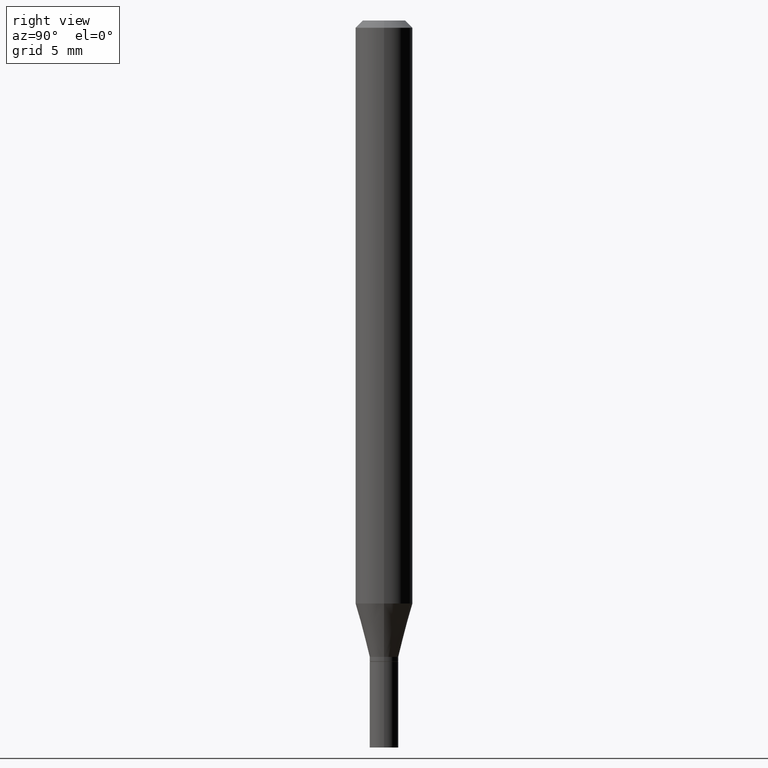
[diagram: clean part render]
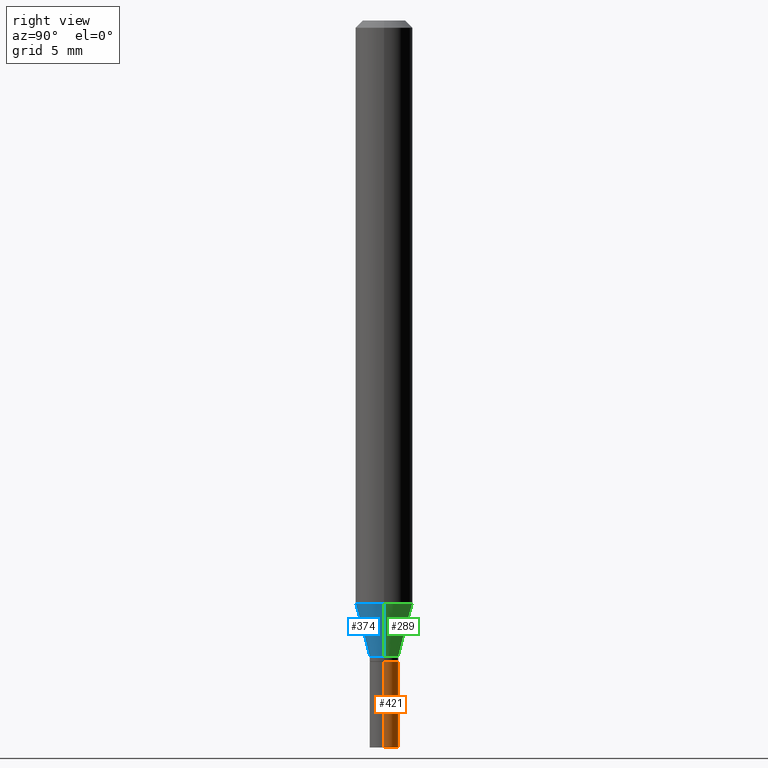
[diagram: same view with three faces highlighted in distinct colors, each labeled with its STEP entity id]
A machine part, right view with three faces highlighted in distinct colors.
Their STEP definitions:

[orange] entity #421 — the highlighted cylindrical surface (edge-blend (fillet) strip) has radius 0.7506 mm, axis along (-0, 0, 1).
#1 = CARTESIAN_POINT ( 'NONE',  ( 0.02954999999999999988, -2.063465471256291914E-16, 1.440910237247699070E-30 ) ) ;
#40 = AXIS2_PLACEMENT_3D ( 'NONE', #461, #210, #424 ) ;
#52 = VERTEX_POINT ( 'NONE', #278 ) ;
#55 = VECTOR ( 'NONE', #140, 39.37007874015748143 ) ;
#63 = DIRECTION ( 'NONE',  ( 1.000000000000000000, -6.982962677686261977E-15, 0.000000000000000000 ) ) ;
#79 = VERTEX_POINT ( 'NONE', #92 ) ;
#88 = DIRECTION ( 'NONE',  ( -2.445468806185136597E-29, 3.491481338843145583E-15, 1.000000000000000000 ) ) ;
#92 = CARTESIAN_POINT ( 'NONE',  ( 0.02954999999999999988, -5.443568555390347787E-15, -1.500000000000000222 ) ) ;
#100 = CYLINDRICAL_SURFACE ( 'NONE', #40, 0.02954999999999999988 ) ;
#115 = LINE ( 'NONE', #1, #316 ) ;
#132 = ORIENTED_EDGE ( 'NONE', *, *, #370, .F. ) ;
#138 = DIRECTION ( 'NONE',  ( -2.445468806185136877E-29, 3.491481338843145188E-15, 1.000000000000000000 ) ) ;
#140 = DIRECTION ( 'NONE',  ( -2.445468806185136877E-29, 3.491481338843145188E-15, 1.000000000000000000 ) ) ;
#152 = EDGE_CURVE ( 'NONE', #79, #275, #432, .T. ) ;
#164 = ORIENTED_EDGE ( 'NONE', *, *, #152, .T. ) ;
#166 = CARTESIAN_POINT ( 'NONE',  ( 3.234866136821698561E-29, -4.618531515021712857E-15, -1.322800000000000198 ) ) ;
#172 = EDGE_CURVE ( 'NONE', #275, #52, #325, .T. ) ;
#210 = DIRECTION ( 'NONE',  ( -2.445468806185136597E-29, 3.491481338843145583E-15, 1.000000000000000000 ) ) ;
#217 = EDGE_LOOP ( 'NONE', ( #164, #428, #235, #132 ) ) ;
#230 = CARTESIAN_POINT ( 'NONE',  ( -0.02954999999999999988, -4.717911383226106554E-15, -1.500000000000000222 ) ) ;
#235 = ORIENTED_EDGE ( 'NONE', *, *, #281, .F. ) ;
#275 = VERTEX_POINT ( 'NONE', #230 ) ;
#278 = CARTESIAN_POINT ( 'NONE',  ( -0.02954999999999999988, -4.717911383226106554E-15, -1.322800000000000198 ) ) ;
#281 = EDGE_CURVE ( 'NONE', #437, #52, #451, .T. ) ;
#282 = FACE_OUTER_BOUND ( 'NONE', #217, .T. ) ;
#290 = CARTESIAN_POINT ( 'NONE',  ( 3.668203209277704895E-29, -5.237222008264718177E-15, -1.500000000000000222 ) ) ;
#316 = VECTOR ( 'NONE', #138, 39.37007874015748143 ) ;
#322 = CARTESIAN_POINT ( 'NONE',  ( 0.02954999999999999988, -4.824878062147342468E-15, -1.322800000000000198 ) ) ;
#325 = LINE ( 'NONE', #463, #55 ) ;
#362 = DIRECTION ( 'NONE',  ( -2.445468806185136597E-29, 3.491481338843145583E-15, 1.000000000000000000 ) ) ;
#370 = EDGE_CURVE ( 'NONE', #79, #437, #115, .T. ) ;
#395 = DIRECTION ( 'NONE',  ( 1.000000000000000000, -6.982962677686261977E-15, 0.000000000000000000 ) ) ;
#413 = AXIS2_PLACEMENT_3D ( 'NONE', #166, #88, #63 ) ;
#421 = ADVANCED_FACE ( 'NONE', ( #282 ), #100, .T. ) ;
#424 = DIRECTION ( 'NONE',  ( 1.000000000000000000, -6.982962677686266711E-15, 4.876176775795935793E-29 ) ) ;
#428 = ORIENTED_EDGE ( 'NONE', *, *, #172, .T. ) ;
#432 = CIRCLE ( 'NONE', #460, 0.02954999999999999988 ) ;
#437 = VERTEX_POINT ( 'NONE', #322 ) ;
#451 = CIRCLE ( 'NONE', #413, 0.02954999999999999988 ) ;
#460 = AXIS2_PLACEMENT_3D ( 'NONE', #290, #362, #395 ) ;
#461 = CARTESIAN_POINT ( 'NONE',  ( 0.000000000000000000, 0.000000000000000000, 0.000000000000000000 ) ) ;
#463 = CARTESIAN_POINT ( 'NONE',  ( -0.02954999999999999988, 2.099653784171096041E-16, -1.453545319170324550E-30 ) ) ;

[blue] entity #374 — the highlighted conical surface has half-angle 15 deg.
#10 = VECTOR ( 'NONE', #200, 39.37007874015748854 ) ;
#20 = LINE ( 'NONE', #206, #75 ) ;
#22 = CARTESIAN_POINT ( 'NONE',  ( -0.05904999999999999832, -3.780343132802594460E-15, -1.202904501176718099 ) ) ;
#23 = DIRECTION ( 'NONE',  ( 1.000000000000000000, -6.982962677686273021E-15, 0.000000000000000000 ) ) ;
#24 = AXIS2_PLACEMENT_3D ( 'NONE', #176, #105, #251 ) ;
#50 = VERTEX_POINT ( 'NONE', #120 ) ;
#57 = CARTESIAN_POINT ( 'NONE',  ( -0.02954999999999992702, -4.374349619483941241E-15, -1.313000000000000167 ) ) ;
#75 = VECTOR ( 'NONE', #443, 39.37007874015748854 ) ;
#96 = CARTESIAN_POINT ( 'NONE',  ( 0.05904999999999999832, -4.612262564386308085E-15, -1.202904501176718099 ) ) ;
#98 = CIRCLE ( 'NONE', #264, 0.02954999999999992702 ) ;
#105 = DIRECTION ( 'NONE',  ( -2.445468806185136597E-29, 3.491481338843145583E-15, 1.000000000000000000 ) ) ;
#114 = EDGE_CURVE ( 'NONE', #186, #201, #245, .T. ) ;
#120 = CARTESIAN_POINT ( 'NONE',  ( -0.02954999999999992702, -4.077346376143267456E-15, -1.313000000000000167 ) ) ;
#126 = AXIS2_PLACEMENT_3D ( 'NONE', #239, #286, #23 ) ;
#141 = FACE_OUTER_BOUND ( 'NONE', #313, .T. ) ;
#176 = CARTESIAN_POINT ( 'NONE',  ( 3.210900542521084585E-29, -4.584314997901050598E-15, -1.313000000000000167 ) ) ;
#181 = EDGE_CURVE ( 'NONE', #50, #284, #98, .T. ) ;
#183 = EDGE_CURVE ( 'NONE', #284, #201, #20, .T. ) ;
#186 = VERTEX_POINT ( 'NONE', #22 ) ;
#200 = DIRECTION ( 'NONE',  ( -0.2588190451025206285, 5.211531920934544731E-15, 0.9659258262890682012 ) ) ;
#201 = VERTEX_POINT ( 'NONE', #96 ) ;
#206 = CARTESIAN_POINT ( 'NONE',  ( 0.02954999999999992702, -4.790661545026680209E-15, -1.313000000000000167 ) ) ;
#208 = DIRECTION ( 'NONE',  ( 1.000000000000000000, -6.982962677686279332E-15, 0.000000000000000000 ) ) ;
#239 = CARTESIAN_POINT ( 'NONE',  ( 2.941665434447356051E-29, -4.199918618268933165E-15, -1.202904501176718099 ) ) ;
#243 = DIRECTION ( 'NONE',  ( -2.445468806185136597E-29, 3.491481338843145583E-15, 1.000000000000000000 ) ) ;
#245 = CIRCLE ( 'NONE', #126, 0.05904999999999999832 ) ;
#251 = DIRECTION ( 'NONE',  ( 1.000000000000000000, -6.982962677686279332E-15, 0.000000000000000000 ) ) ;
#264 = AXIS2_PLACEMENT_3D ( 'NONE', #420, #243, #208 ) ;
#284 = VERTEX_POINT ( 'NONE', #354 ) ;
#286 = DIRECTION ( 'NONE',  ( -2.445468806185136597E-29, 3.491481338843145583E-15, 1.000000000000000000 ) ) ;
#301 = EDGE_CURVE ( 'NONE', #50, #186, #415, .T. ) ;
#311 = ORIENTED_EDGE ( 'NONE', *, *, #114, .F. ) ;
#313 = EDGE_LOOP ( 'NONE', ( #442, #465, #346, #311 ) ) ;
#346 = ORIENTED_EDGE ( 'NONE', *, *, #183, .T. ) ;
#354 = CARTESIAN_POINT ( 'NONE',  ( 0.02954999999999992702, -4.790661545026680209E-15, -1.313000000000000167 ) ) ;
#372 = CONICAL_SURFACE ( 'NONE', #24, 0.02954999999999992702, 0.2617993877991493523 ) ;
#374 = ADVANCED_FACE ( 'NONE', ( #141 ), #372, .T. ) ;
#415 = LINE ( 'NONE', #57, #10 ) ;
#420 = CARTESIAN_POINT ( 'NONE',  ( 3.210900542521084585E-29, -4.584314997901050598E-15, -1.313000000000000167 ) ) ;
#442 = ORIENTED_EDGE ( 'NONE', *, *, #301, .F. ) ;
#443 = DIRECTION ( 'NONE',  ( 0.2588190451025206285, 1.565188264969627095E-15, 0.9659258262890682012 ) ) ;
#465 = ORIENTED_EDGE ( 'NONE', *, *, #181, .T. ) ;

[green] entity #289 — the highlighted conical surface has half-angle 15 deg.
#3 = DIRECTION ( 'NONE',  ( -2.445468806185136597E-29, 3.491481338843145583E-15, 1.000000000000000000 ) ) ;
#8 = DIRECTION ( 'NONE',  ( 1.000000000000000000, -6.982962677686279332E-15, 0.000000000000000000 ) ) ;
#10 = VECTOR ( 'NONE', #200, 39.37007874015748854 ) ;
#20 = LINE ( 'NONE', #206, #75 ) ;
#22 = CARTESIAN_POINT ( 'NONE',  ( -0.05904999999999999832, -3.780343132802594460E-15, -1.202904501176718099 ) ) ;
#26 = CARTESIAN_POINT ( 'NONE',  ( 2.941665434447356051E-29, -4.199918618268933165E-15, -1.202904501176718099 ) ) ;
#45 = ORIENTED_EDGE ( 'NONE', *, *, #183, .F. ) ;
#50 = VERTEX_POINT ( 'NONE', #120 ) ;
#51 = DIRECTION ( 'NONE',  ( 1.000000000000000000, -6.982962677686279332E-15, 0.000000000000000000 ) ) ;
#57 = CARTESIAN_POINT ( 'NONE',  ( -0.02954999999999992702, -4.374349619483941241E-15, -1.313000000000000167 ) ) ;
#69 = CIRCLE ( 'NONE', #296, 0.05904999999999999832 ) ;
#75 = VECTOR ( 'NONE', #443, 39.37007874015748854 ) ;
#86 = DIRECTION ( 'NONE',  ( 1.000000000000000000, -6.982962677686273021E-15, 0.000000000000000000 ) ) ;
#96 = CARTESIAN_POINT ( 'NONE',  ( 0.05904999999999999832, -4.612262564386308085E-15, -1.202904501176718099 ) ) ;
#120 = CARTESIAN_POINT ( 'NONE',  ( -0.02954999999999992702, -4.077346376143267456E-15, -1.313000000000000167 ) ) ;
#157 = DIRECTION ( 'NONE',  ( -2.445468806185136597E-29, 3.491481338843145583E-15, 1.000000000000000000 ) ) ;
#161 = ORIENTED_EDGE ( 'NONE', *, *, #301, .T. ) ;
#171 = EDGE_LOOP ( 'NONE', ( #232, #161, #315, #45 ) ) ;
#180 = CARTESIAN_POINT ( 'NONE',  ( 3.210900542521084585E-29, -4.584314997901050598E-15, -1.313000000000000167 ) ) ;
#183 = EDGE_CURVE ( 'NONE', #284, #201, #20, .T. ) ;
#186 = VERTEX_POINT ( 'NONE', #22 ) ;
#200 = DIRECTION ( 'NONE',  ( -0.2588190451025206285, 5.211531920934544731E-15, 0.9659258262890682012 ) ) ;
#201 = VERTEX_POINT ( 'NONE', #96 ) ;
#206 = CARTESIAN_POINT ( 'NONE',  ( 0.02954999999999992702, -4.790661545026680209E-15, -1.313000000000000167 ) ) ;
#232 = ORIENTED_EDGE ( 'NONE', *, *, #445, .T. ) ;
#277 = CARTESIAN_POINT ( 'NONE',  ( 3.210900542521084585E-29, -4.584314997901050598E-15, -1.313000000000000167 ) ) ;
#284 = VERTEX_POINT ( 'NONE', #354 ) ;
#289 = ADVANCED_FACE ( 'NONE', ( #340 ), #324, .T. ) ;
#293 = AXIS2_PLACEMENT_3D ( 'NONE', #180, #3, #8 ) ;
#296 = AXIS2_PLACEMENT_3D ( 'NONE', #26, #157, #86 ) ;
#301 = EDGE_CURVE ( 'NONE', #50, #186, #415, .T. ) ;
#315 = ORIENTED_EDGE ( 'NONE', *, *, #338, .F. ) ;
#324 = CONICAL_SURFACE ( 'NONE', #382, 0.02954999999999992702, 0.2617993877991493523 ) ;
#338 = EDGE_CURVE ( 'NONE', #201, #186, #69, .T. ) ;
#340 = FACE_OUTER_BOUND ( 'NONE', #171, .T. ) ;
#354 = CARTESIAN_POINT ( 'NONE',  ( 0.02954999999999992702, -4.790661545026680209E-15, -1.313000000000000167 ) ) ;
#355 = CIRCLE ( 'NONE', #293, 0.02954999999999992702 ) ;
#377 = DIRECTION ( 'NONE',  ( -2.445468806185136597E-29, 3.491481338843145583E-15, 1.000000000000000000 ) ) ;
#382 = AXIS2_PLACEMENT_3D ( 'NONE', #277, #377, #51 ) ;
#415 = LINE ( 'NONE', #57, #10 ) ;
#443 = DIRECTION ( 'NONE',  ( 0.2588190451025206285, 1.565188264969627095E-15, 0.9659258262890682012 ) ) ;
#445 = EDGE_CURVE ( 'NONE', #284, #50, #355, .T. ) ;